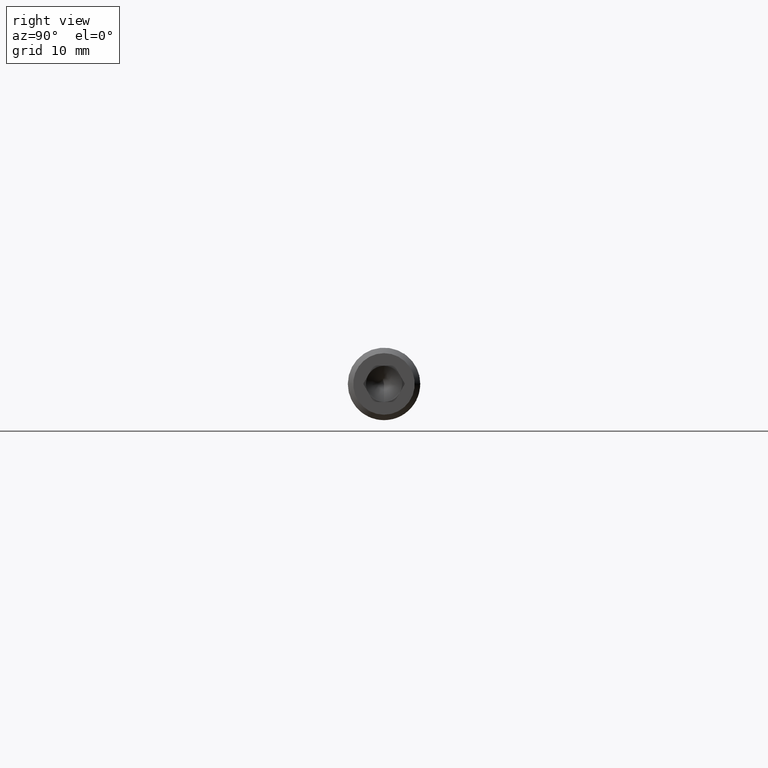
[diagram: clean part render]
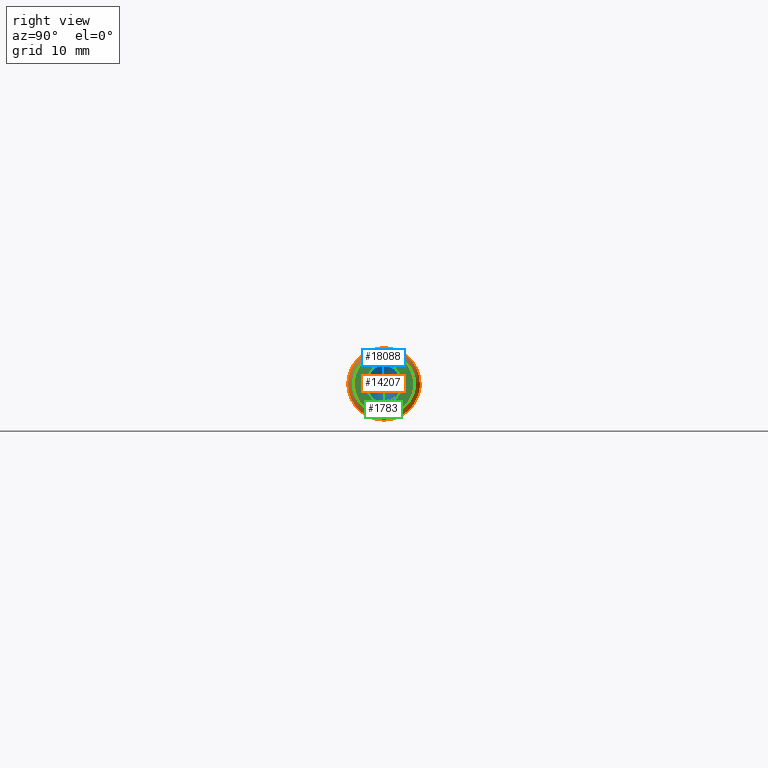
[diagram: same view with three faces highlighted in distinct colors, each labeled with its STEP entity id]
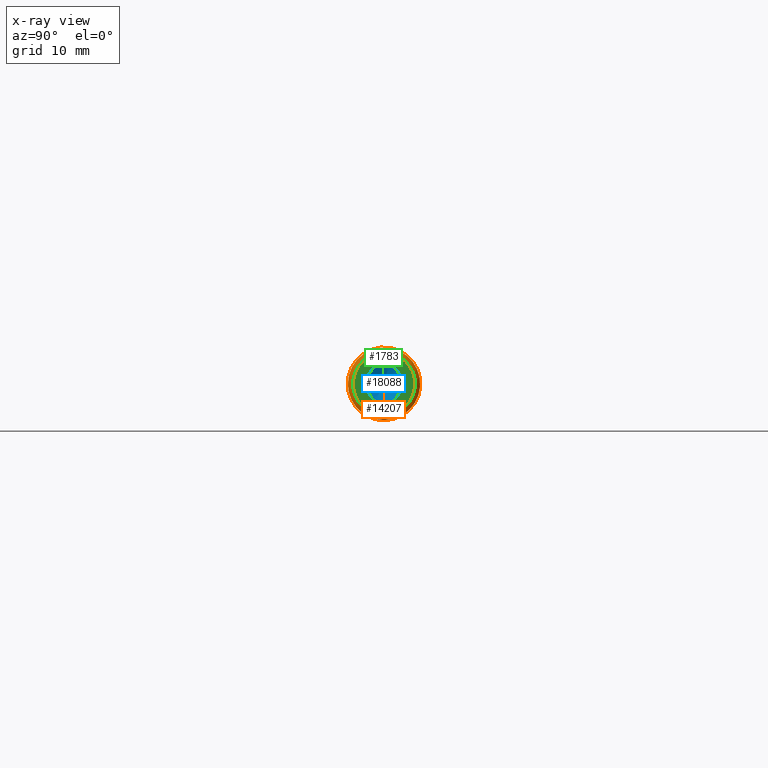
[diagram: x-ray of the same camera — body ghosted, the three highlighted faces saturated]
A machine part, right view with three faces highlighted in distinct colors.
The next image is the same camera in x-ray (body ghosted, the three faces saturated) — at least one of them is partly hidden behind the body in this view.
Their STEP definitions:

[orange] entity #14207 — the highlighted conical surface has half-angle 45 deg.
#475 = VERTEX_POINT ( 'NONE', #16531 ) ;
#557 = DIRECTION ( 'NONE',  ( 0.0000000000000000000, 0.0000000000000000000, -1.000000000000000000 ) ) ;
#921 = AXIS2_PLACEMENT_3D ( 'NONE', #17944, #10680, #557 ) ;
#930 = EDGE_LOOP ( 'NONE', ( #12250 ) ) ;
#956 = DIRECTION ( 'NONE',  ( 0.0000000000000000000, 0.0000000000000000000, 1.000000000000000000 ) ) ;
#1156 = VERTEX_POINT ( 'NONE', #6472 ) ;
#3406 = EDGE_CURVE ( 'NONE', #1156, #1156, #15215, .T. ) ;
#4578 = FACE_OUTER_BOUND ( 'NONE', #930, .T. ) ;
#6472 = CARTESIAN_POINT ( 'NONE',  ( 79.39999999999999100, 0.0000000000000000000, -4.000000000000000000 ) ) ;
#6681 = CARTESIAN_POINT ( 'NONE',  ( 80.00000000000000000, 0.0000000000000000000, 0.0000000000000000000 ) ) ;
#7047 = ORIENTED_EDGE ( 'NONE', *, *, #18541, .F. ) ;
#8375 = CARTESIAN_POINT ( 'NONE',  ( 79.39999999999999100, 0.0000000000000000000, 0.0000000000000000000 ) ) ;
#10680 = DIRECTION ( 'NONE',  ( 1.000000000000000000, 0.0000000000000000000, 0.0000000000000000000 ) ) ;
#11025 = AXIS2_PLACEMENT_3D ( 'NONE', #8375, #13821, #18345 ) ;
#12250 = ORIENTED_EDGE ( 'NONE', *, *, #3406, .F. ) ;
#13641 = EDGE_LOOP ( 'NONE', ( #7047 ) ) ;
#13796 = FACE_BOUND ( 'NONE', #13641, .T. ) ;
#13821 = DIRECTION ( 'NONE',  ( -1.000000000000000000, 0.0000000000000000000, 0.0000000000000000000 ) ) ;
#13832 = DIRECTION ( 'NONE',  ( -1.000000000000000000, 0.0000000000000000000, 0.0000000000000000000 ) ) ;
#14207 = ADVANCED_FACE ( 'NONE', ( #4578, #13796 ), #14676, .T. ) ;
#14617 = CIRCLE ( 'NONE', #921, 3.399999999999997200 ) ;
#14676 = CONICAL_SURFACE ( 'NONE', #14842, 3.399999999999997200, 0.7853981633974479500 ) ;
#14842 = AXIS2_PLACEMENT_3D ( 'NONE', #6681, #13832, #956 ) ;
#15215 = CIRCLE ( 'NONE', #11025, 4.000000000000000000 ) ;
#16531 = CARTESIAN_POINT ( 'NONE',  ( 80.00000000000000000, 0.0000000000000000000, -3.399999999999997200 ) ) ;
#17944 = CARTESIAN_POINT ( 'NONE',  ( 80.00000000000000000, 0.0000000000000000000, 0.0000000000000000000 ) ) ;
#18345 = DIRECTION ( 'NONE',  ( 0.0000000000000000000, 0.0000000000000000000, -1.000000000000000000 ) ) ;
#18541 = EDGE_CURVE ( 'NONE', #475, #475, #14617, .T. ) ;

[blue] entity #18088 — the highlighted conical surface has half-angle 59 deg.
#129 = CIRCLE ( 'NONE', #13285, 1.999999999999996200 ) ;
#355 = DIRECTION ( 'NONE',  ( 0.0000000000000000000, 0.0000000000000000000, 1.000000000000000000 ) ) ;
#400 = DIRECTION ( 'NONE',  ( -1.000000000000000000, -0.0000000000000000000, 0.0000000000000000000 ) ) ;
#422 = DIRECTION ( 'NONE',  ( -1.000000000000000000, -0.0000000000000000000, 0.0000000000000000000 ) ) ;
#437 = DIRECTION ( 'NONE',  ( 0.0000000000000000000, 0.0000000000000000000, 1.000000000000000000 ) ) ;
#1345 = CARTESIAN_POINT ( 'NONE',  ( 75.00000000000000000, 0.0000000000000000000, -4.041334437186266200E-015 ) ) ;
#1568 = CARTESIAN_POINT ( 'NONE',  ( 75.00000000000000000, 0.0000000000000000000, -3.393333682117899000E-015 ) ) ;
#1924 = VERTEX_POINT ( 'NONE', #17055 ) ;
#2502 = EDGE_CURVE ( 'NONE', #14153, #5511, #16548, .T. ) ;
#2787 = AXIS2_PLACEMENT_3D ( 'NONE', #14642, #400, #4849 ) ;
#2858 = ORIENTED_EDGE ( 'NONE', *, *, #10466, .F. ) ;
#3010 = DIRECTION ( 'NONE',  ( -1.000000000000000000, -0.0000000000000000000, 0.0000000000000000000 ) ) ;
#3560 = EDGE_CURVE ( 'NONE', #5511, #8594, #12767, .T. ) ;
#3633 = AXIS2_PLACEMENT_3D ( 'NONE', #14912, #13506, #437 ) ;
#4423 = CIRCLE ( 'NONE', #2787, 1.999999999999996200 ) ;
#4785 = DIRECTION ( 'NONE',  ( 1.000000000000000000, -0.0000000000000000000, -1.946790674103555800E-016 ) ) ;
#4849 = DIRECTION ( 'NONE',  ( 0.0000000000000000000, 0.0000000000000000000, 1.000000000000000000 ) ) ;
#5511 = VERTEX_POINT ( 'NONE', #15272 ) ;
#6245 = CARTESIAN_POINT ( 'NONE',  ( 75.00000000000000000, 0.0000000000000000000, -4.041334437186266200E-015 ) ) ;
#7579 = VERTEX_POINT ( 'NONE', #15759 ) ;
#8594 = VERTEX_POINT ( 'NONE', #15722 ) ;
#8610 = EDGE_CURVE ( 'NONE', #7579, #14153, #4423, .T. ) ;
#8643 = EDGE_CURVE ( 'NONE', #17995, #8594, #9367, .T. ) ;
#8870 = ORIENTED_EDGE ( 'NONE', *, *, #10222, .F. ) ;
#8982 = AXIS2_PLACEMENT_3D ( 'NONE', #10237, #422, #355 ) ;
#9217 = AXIS2_PLACEMENT_3D ( 'NONE', #1568, #3010, #17394 ) ;
#9367 = CIRCLE ( 'NONE', #10635, 1.999999999999996200 ) ;
#9937 = FACE_OUTER_BOUND ( 'NONE', #17639, .T. ) ;
#10222 = EDGE_CURVE ( 'NONE', #1924, #7579, #12939, .T. ) ;
#10237 = CARTESIAN_POINT ( 'NONE',  ( 75.00000000000000000, 0.0000000000000000000, -3.393333682117899000E-015 ) ) ;
#10466 = EDGE_CURVE ( 'NONE', #17995, #1924, #129, .T. ) ;
#10588 = DIRECTION ( 'NONE',  ( 0.0000000000000000000, 0.0000000000000000000, -1.000000000000000000 ) ) ;
#10598 = CARTESIAN_POINT ( 'NONE',  ( 75.00000000000000000, 3.755786496842888200E-016, -2.000000000000000000 ) ) ;
#10635 = AXIS2_PLACEMENT_3D ( 'NONE', #6245, #4785, #10588 ) ;
#11823 = DIRECTION ( 'NONE',  ( 0.0000000000000000000, 0.0000000000000000000, 1.000000000000000000 ) ) ;
#12767 = CIRCLE ( 'NONE', #9217, 1.999999999999996200 ) ;
#12939 = CIRCLE ( 'NONE', #3633, 1.999999999999996200 ) ;
#13248 = ORIENTED_EDGE ( 'NONE', *, *, #8610, .F. ) ;
#13285 = AXIS2_PLACEMENT_3D ( 'NONE', #14758, #14814, #11823 ) ;
#13477 = CARTESIAN_POINT ( 'NONE',  ( 75.00000000000000000, 0.0000000000000000000, 1.999999999999999600 ) ) ;
#13506 = DIRECTION ( 'NONE',  ( -1.000000000000000000, -0.0000000000000000000, 0.0000000000000000000 ) ) ;
#14153 = VERTEX_POINT ( 'NONE', #13477 ) ;
#14205 = DIRECTION ( 'NONE',  ( 0.0000000000000000000, 0.0000000000000000000, -1.000000000000000000 ) ) ;
#14578 = ORIENTED_EDGE ( 'NONE', *, *, #3560, .F. ) ;
#14642 = CARTESIAN_POINT ( 'NONE',  ( 75.00000000000000000, 0.0000000000000000000, -3.393333682117899000E-015 ) ) ;
#14758 = CARTESIAN_POINT ( 'NONE',  ( 75.00000000000000000, 0.0000000000000000000, -3.393333682117899000E-015 ) ) ;
#14814 = DIRECTION ( 'NONE',  ( -1.000000000000000000, -0.0000000000000000000, 0.0000000000000000000 ) ) ;
#14892 = ORIENTED_EDGE ( 'NONE', *, *, #2502, .F. ) ;
#14912 = CARTESIAN_POINT ( 'NONE',  ( 75.00000000000000000, 0.0000000000000000000, -3.393333682117899000E-015 ) ) ;
#15272 = CARTESIAN_POINT ( 'NONE',  ( 75.00000000000000000, 1.732050807568873600, 0.9999999999999941200 ) ) ;
#15306 = ORIENTED_EDGE ( 'NONE', *, *, #8643, .T. ) ;
#15517 = CONICAL_SURFACE ( 'NONE', #16750, 1.999999999999996200, 1.029744258676648800 ) ;
#15560 = DIRECTION ( 'NONE',  ( 1.000000000000000000, -0.0000000000000000000, -1.946790674103555800E-016 ) ) ;
#15722 = CARTESIAN_POINT ( 'NONE',  ( 75.00000000000000000, 1.732050807568874100, -1.000000000000001600 ) ) ;
#15759 = CARTESIAN_POINT ( 'NONE',  ( 75.00000000000000000, -1.732050807568873200, 0.9999999999999947800 ) ) ;
#16548 = CIRCLE ( 'NONE', #8982, 1.999999999999996200 ) ;
#16750 = AXIS2_PLACEMENT_3D ( 'NONE', #1345, #15560, #14205 ) ;
#17055 = CARTESIAN_POINT ( 'NONE',  ( 75.00000000000000000, -1.732050807568874300, -1.000000000000001300 ) ) ;
#17394 = DIRECTION ( 'NONE',  ( 0.0000000000000000000, 0.0000000000000000000, 1.000000000000000000 ) ) ;
#17639 = EDGE_LOOP ( 'NONE', ( #15306, #14578, #14892, #13248, #8870, #2858 ) ) ;
#17995 = VERTEX_POINT ( 'NONE', #10598 ) ;
#18088 = ADVANCED_FACE ( 'NONE', ( #9937 ), #15517, .F. ) ;

[green] entity #1783 — the highlighted planar face has unit normal (1, 0, 0).
#288 = CARTESIAN_POINT ( 'NONE',  ( 80.00000000000000000, -2.309401076758506500, -4.766870681724039000E-018 ) ) ;
#475 = VERTEX_POINT ( 'NONE', #16531 ) ;
#557 = DIRECTION ( 'NONE',  ( 0.0000000000000000000, 0.0000000000000000000, -1.000000000000000000 ) ) ;
#723 = DIRECTION ( 'NONE',  ( 0.0000000000000000000, -0.5000000000000003300, -0.8660254037844384900 ) ) ;
#801 = DIRECTION ( 'NONE',  ( 0.0000000000000000000, 1.000000000000000000, 1.877893248421447600E-016 ) ) ;
#921 = AXIS2_PLACEMENT_3D ( 'NONE', #17944, #10680, #557 ) ;
#951 = LINE ( 'NONE', #12573, #11520 ) ;
#1258 = CARTESIAN_POINT ( 'NONE',  ( 80.00000000000000000, 1.154700538379249500, 2.000000000000000000 ) ) ;
#1438 = EDGE_CURVE ( 'NONE', #4840, #2063, #8339, .T. ) ;
#1503 = DIRECTION ( 'NONE',  ( 0.0000000000000000000, -0.4999999999999998900, 0.8660254037844387100 ) ) ;
#1783 = ADVANCED_FACE ( 'NONE', ( #13247, #3347 ), #3595, .T. ) ;
#1989 = EDGE_LOOP ( 'NONE', ( #12153, #6702, #9198, #16298, #12244, #17376 ) ) ;
#2063 = VERTEX_POINT ( 'NONE', #12051 ) ;
#2083 = VECTOR ( 'NONE', #1503, 1000.000000000000000 ) ;
#2157 = CARTESIAN_POINT ( 'NONE',  ( 80.00000000000000000, 0.0000000000000000000, 0.0000000000000000000 ) ) ;
#2186 = CARTESIAN_POINT ( 'NONE',  ( 80.00000000000000000, -1.154700538379255700, -2.000000000000000000 ) ) ;
#2335 = VERTEX_POINT ( 'NONE', #1258 ) ;
#2917 = EDGE_CURVE ( 'NONE', #2063, #17332, #10540, .T. ) ;
#3347 = FACE_OUTER_BOUND ( 'NONE', #11548, .T. ) ;
#3533 = VERTEX_POINT ( 'NONE', #14485 ) ;
#3595 = PLANE ( 'NONE',  #9568 ) ;
#3935 = EDGE_CURVE ( 'NONE', #3533, #11949, #8736, .T. ) ;
#4124 = DIRECTION ( 'NONE',  ( 0.0000000000000000000, 0.4999999999999999400, 0.8660254037844387100 ) ) ;
#4350 = CARTESIAN_POINT ( 'NONE',  ( 80.00000000000000000, -1.154700538379255700, -2.000000000000000000 ) ) ;
#4840 = VERTEX_POINT ( 'NONE', #17514 ) ;
#6702 = ORIENTED_EDGE ( 'NONE', *, *, #17390, .F. ) ;
#8339 = LINE ( 'NONE', #16267, #9220 ) ;
#8518 = VECTOR ( 'NONE', #4124, 999.9999999999998900 ) ;
#8626 = CARTESIAN_POINT ( 'NONE',  ( 80.00000000000000000, 2.309401076758500700, -2.008531840100152800E-016 ) ) ;
#8736 = LINE ( 'NONE', #9600, #8518 ) ;
#9139 = LINE ( 'NONE', #2186, #11150 ) ;
#9198 = ORIENTED_EDGE ( 'NONE', *, *, #16120, .F. ) ;
#9214 = DIRECTION ( 'NONE',  ( 0.0000000000000000000, 0.4999999999999997800, -0.8660254037844387100 ) ) ;
#9220 = VECTOR ( 'NONE', #723, 1000.000000000000100 ) ;
#9252 = EDGE_CURVE ( 'NONE', #17332, #3533, #9139, .T. ) ;
#9568 = AXIS2_PLACEMENT_3D ( 'NONE', #2157, #13533, #13658 ) ;
#9600 = CARTESIAN_POINT ( 'NONE',  ( 80.00000000000000000, 1.154700538379249500, -1.999999999999999600 ) ) ;
#9736 = LINE ( 'NONE', #8626, #2083 ) ;
#10289 = ORIENTED_EDGE ( 'NONE', *, *, #18541, .T. ) ;
#10540 = LINE ( 'NONE', #288, #18328 ) ;
#10680 = DIRECTION ( 'NONE',  ( 1.000000000000000000, 0.0000000000000000000, 0.0000000000000000000 ) ) ;
#11150 = VECTOR ( 'NONE', #801, 1000.000000000000000 ) ;
#11520 = VECTOR ( 'NONE', #12441, 1000.000000000000000 ) ;
#11548 = EDGE_LOOP ( 'NONE', ( #10289 ) ) ;
#11949 = VERTEX_POINT ( 'NONE', #14558 ) ;
#12051 = CARTESIAN_POINT ( 'NONE',  ( 80.00000000000000000, -2.309401076758506000, 0.0000000000000000000 ) ) ;
#12153 = ORIENTED_EDGE ( 'NONE', *, *, #1438, .F. ) ;
#12244 = ORIENTED_EDGE ( 'NONE', *, *, #9252, .F. ) ;
#12441 = DIRECTION ( 'NONE',  ( 0.0000000000000000000, -1.000000000000000000, 0.0000000000000000000 ) ) ;
#12573 = CARTESIAN_POINT ( 'NONE',  ( 80.00000000000000000, 1.154700538379249500, 2.000000000000000000 ) ) ;
#13247 = FACE_BOUND ( 'NONE', #1989, .T. ) ;
#13533 = DIRECTION ( 'NONE',  ( 1.000000000000000000, 0.0000000000000000000, 0.0000000000000000000 ) ) ;
#13658 = DIRECTION ( 'NONE',  ( 0.0000000000000000000, 0.0000000000000000000, -1.000000000000000000 ) ) ;
#14485 = CARTESIAN_POINT ( 'NONE',  ( 80.00000000000000000, 1.154700538379249500, -1.999999999999999600 ) ) ;
#14558 = CARTESIAN_POINT ( 'NONE',  ( 80.00000000000000000, 2.309401076758500700, -2.008531840100152800E-016 ) ) ;
#14617 = CIRCLE ( 'NONE', #921, 3.399999999999997200 ) ;
#16120 = EDGE_CURVE ( 'NONE', #11949, #2335, #9736, .T. ) ;
#16267 = CARTESIAN_POINT ( 'NONE',  ( 80.00000000000000000, -1.154700538379254300, 2.000000000000000000 ) ) ;
#16298 = ORIENTED_EDGE ( 'NONE', *, *, #3935, .F. ) ;
#16531 = CARTESIAN_POINT ( 'NONE',  ( 80.00000000000000000, 0.0000000000000000000, -3.399999999999997200 ) ) ;
#17332 = VERTEX_POINT ( 'NONE', #4350 ) ;
#17376 = ORIENTED_EDGE ( 'NONE', *, *, #2917, .F. ) ;
#17390 = EDGE_CURVE ( 'NONE', #2335, #4840, #951, .T. ) ;
#17514 = CARTESIAN_POINT ( 'NONE',  ( 80.00000000000000000, -1.154700538379254300, 2.000000000000000000 ) ) ;
#17944 = CARTESIAN_POINT ( 'NONE',  ( 80.00000000000000000, 0.0000000000000000000, 0.0000000000000000000 ) ) ;
#18328 = VECTOR ( 'NONE', #9214, 1000.000000000000200 ) ;
#18541 = EDGE_CURVE ( 'NONE', #475, #475, #14617, .T. ) ;